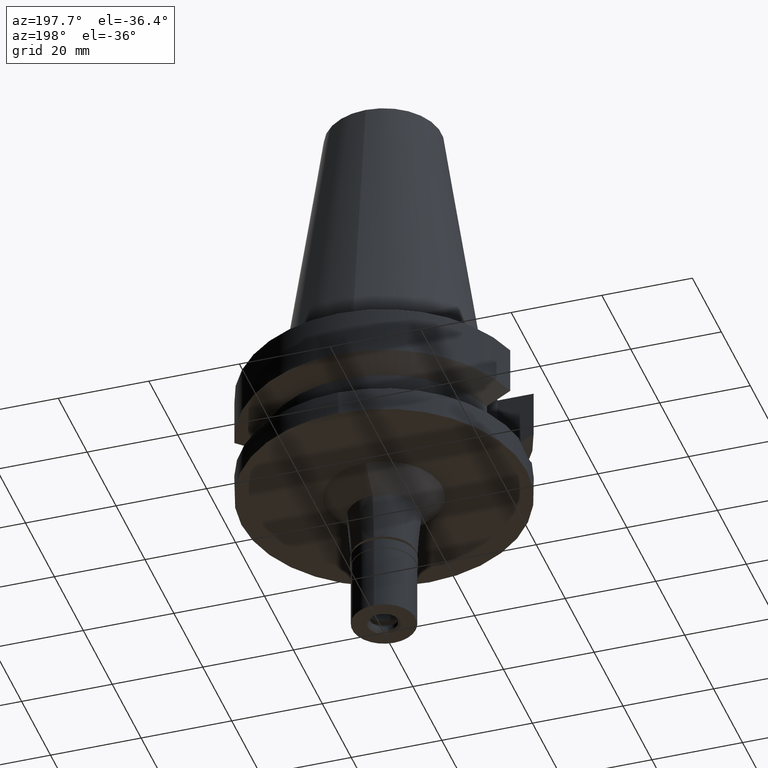
[diagram: clean part render]
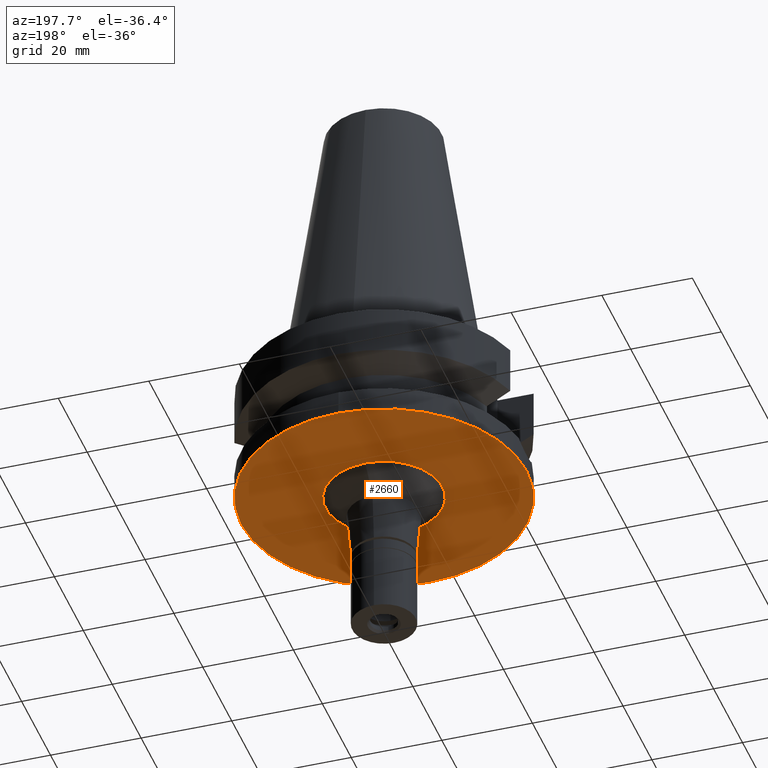
[diagram: same view with one face highlighted and labeled with its STEP entity id]
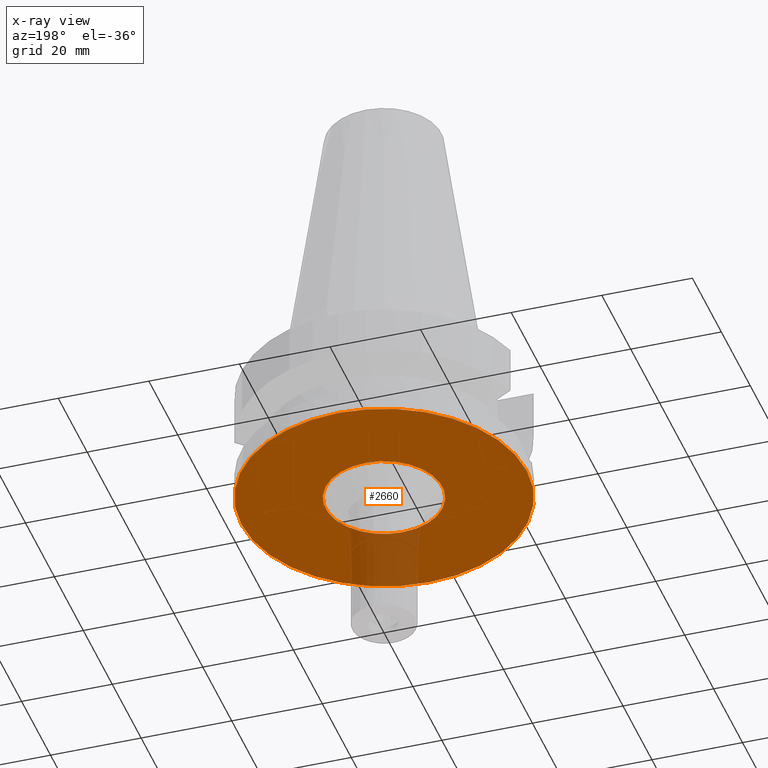
[diagram: x-ray of the same camera — body ghosted, the highlighted face saturated]
A machine part, auxiliary view. The second image highlights one B-rep face of the part: STEP entity #2660.
The next image is the same camera in x-ray: the body ghosted, the highlighted face saturated — about 10% of this face is hidden behind the body in this view.
In plain terms, the highlighted planar face has unit normal (0, 0, -1).
Its self-contained STEP definition (entity closure, byte-faithful):
#5 = CARTESIAN_POINT ( 'NONE',  ( 0.0000000000000000000, 0.0000000000000000000, -27.00000000000000000 ) ) ;
#41 = CIRCLE ( 'NONE', #474, 12.90113323431999959 ) ;
#161 = ORIENTED_EDGE ( 'NONE', *, *, #2382, .F. ) ;
#198 = DIRECTION ( 'NONE',  ( 0.0000000000000000000, 1.000000000000000000, 0.0000000000000000000 ) ) ;
#245 = EDGE_CURVE ( 'NONE', #1989, #2144, #940, .T. ) ;
#287 = DIRECTION ( 'NONE',  ( 0.0000000000000000000, 0.0000000000000000000, 1.000000000000000000 ) ) ;
#294 = EDGE_CURVE ( 'NONE', #1497, #1266, #1765, .T. ) ;
#457 = DIRECTION ( 'NONE',  ( 0.0000000000000000000, -1.000000000000000000, 0.0000000000000000000 ) ) ;
#474 = AXIS2_PLACEMENT_3D ( 'NONE', #5, #674, #457 ) ;
#561 = EDGE_LOOP ( 'NONE', ( #617, #1782 ) ) ;
#591 = CARTESIAN_POINT ( 'NONE',  ( 0.0000000000000000000, 0.0000000000000000000, -27.00000000000000000 ) ) ;
#617 = ORIENTED_EDGE ( 'NONE', *, *, #294, .F. ) ;
#664 = AXIS2_PLACEMENT_3D ( 'NONE', #875, #2701, #198 ) ;
#674 = DIRECTION ( 'NONE',  ( 0.0000000000000000000, 0.0000000000000000000, -1.000000000000000000 ) ) ;
#718 = CARTESIAN_POINT ( 'NONE',  ( 0.0000000000000000000, 2.099901866497999886E-14, -27.00000000000000000 ) ) ;
#875 = CARTESIAN_POINT ( 'NONE',  ( 0.0000000000000000000, 0.0000000000000000000, -27.00000000000000000 ) ) ;
#912 = CARTESIAN_POINT ( 'NONE',  ( 0.0000000000000000000, 12.90113323431999959, -27.00000000000000000 ) ) ;
#940 = CIRCLE ( 'NONE', #1324, 31.50000000000000000 ) ;
#1020 = DIRECTION ( 'NONE',  ( 0.0000000000000000000, 1.000000000000000000, 0.0000000000000000000 ) ) ;
#1061 = PLANE ( 'NONE',  #2783 ) ;
#1123 = CARTESIAN_POINT ( 'NONE',  ( 0.0000000000000000000, 31.50000000000000000, -27.00000000000000000 ) ) ;
#1266 = VERTEX_POINT ( 'NONE', #2416 ) ;
#1285 = EDGE_LOOP ( 'NONE', ( #161, #2014 ) ) ;
#1292 = DIRECTION ( 'NONE',  ( 0.0000000000000000000, 0.0000000000000000000, -1.000000000000000000 ) ) ;
#1324 = AXIS2_PLACEMENT_3D ( 'NONE', #718, #2098, #2793 ) ;
#1497 = VERTEX_POINT ( 'NONE', #912 ) ;
#1737 = FACE_OUTER_BOUND ( 'NONE', #1285, .T. ) ;
#1765 = CIRCLE ( 'NONE', #664, 12.90113323431999959 ) ;
#1782 = ORIENTED_EDGE ( 'NONE', *, *, #2088, .F. ) ;
#1989 = VERTEX_POINT ( 'NONE', #2417 ) ;
#2014 = ORIENTED_EDGE ( 'NONE', *, *, #245, .F. ) ;
#2068 = AXIS2_PLACEMENT_3D ( 'NONE', #2359, #287, #1020 ) ;
#2088 = EDGE_CURVE ( 'NONE', #1266, #1497, #41, .T. ) ;
#2098 = DIRECTION ( 'NONE',  ( 0.0000000000000000000, 0.0000000000000000000, 1.000000000000000000 ) ) ;
#2144 = VERTEX_POINT ( 'NONE', #1123 ) ;
#2219 = DIRECTION ( 'NONE',  ( 0.0000000000000000000, -1.000000000000000000, 0.0000000000000000000 ) ) ;
#2359 = CARTESIAN_POINT ( 'NONE',  ( 0.0000000000000000000, 2.099901866497999886E-14, -27.00000000000000000 ) ) ;
#2382 = EDGE_CURVE ( 'NONE', #2144, #1989, #2646, .T. ) ;
#2416 = CARTESIAN_POINT ( 'NONE',  ( 0.0000000000000000000, -12.90113323431999959, -27.00000000000000000 ) ) ;
#2417 = CARTESIAN_POINT ( 'NONE',  ( 0.0000000000000000000, -31.50000000000000000, -27.00000000000000000 ) ) ;
#2646 = CIRCLE ( 'NONE', #2068, 31.50000000000000000 ) ;
#2660 = ADVANCED_FACE ( 'NONE', ( #1737, #2662 ), #1061, .T. ) ;
#2662 = FACE_BOUND ( 'NONE', #561, .T. ) ;
#2701 = DIRECTION ( 'NONE',  ( 0.0000000000000000000, 0.0000000000000000000, -1.000000000000000000 ) ) ;
#2783 = AXIS2_PLACEMENT_3D ( 'NONE', #591, #1292, #2219 ) ;
#2793 = DIRECTION ( 'NONE',  ( 0.0000000000000000000, -1.000000000000000000, 0.0000000000000000000 ) ) ;